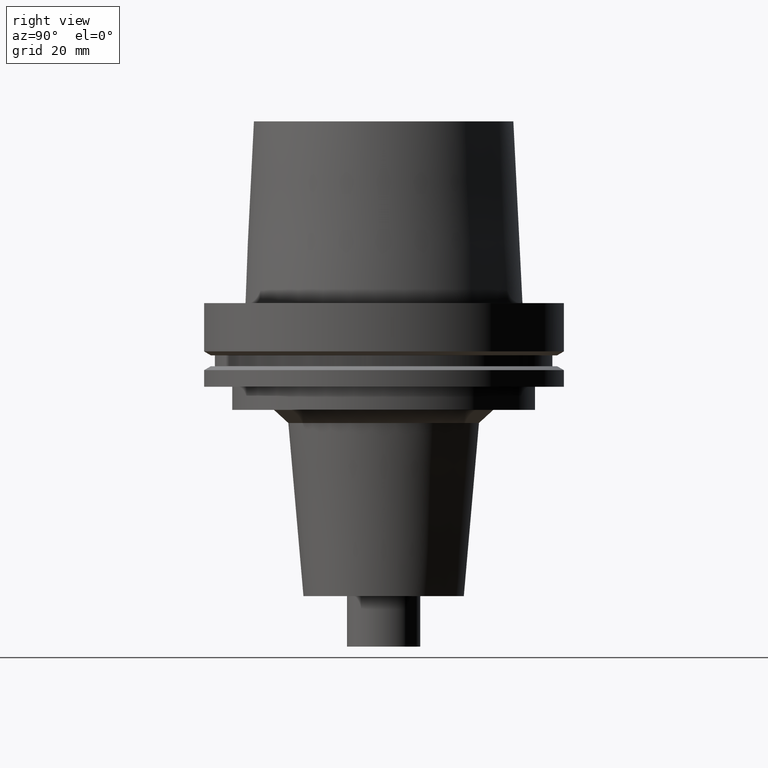
[diagram: clean part render]
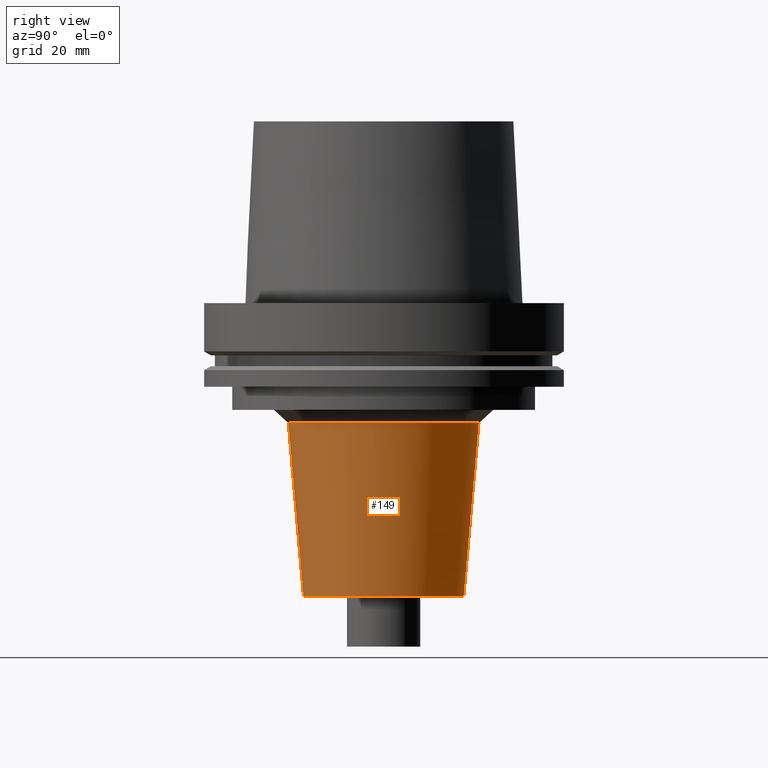
[diagram: same view with one face highlighted and labeled with its STEP entity id]
A machine part, right view. The second image highlights one B-rep face of the part: STEP entity #149.
In plain terms, the highlighted conical surface has half-angle 5 deg.
Its self-contained STEP definition (entity closure, byte-faithful):
#69=EDGE_CURVE('Unnamed[1]',#182,#182,#183,.T.);
#101=EDGE_CURVE('Unnamed[1]',#232,#232,#233,.T.);
#149=ADVANCED_FACE('Unnamed[1]',(#305,#306),#307,.T.);
#182=VERTEX_POINT('',#334);
#183=CIRCLE('',#335,33.0524500434029);
#232=VERTEX_POINT('',#398);
#233=CIRCLE('',#399,27.8000000000002);
#305=FACE_BOUND('',#488,.T.);
#306=FACE_BOUND('',#489,.T.);
#307=CONICAL_SURFACE('',#490,30.4262250217015,0.0872664625997151);
#334=CARTESIAN_POINT('',(2.54507452786363E-015,33.0524500434029,-41.5642212862616));
#335=AXIS2_PLACEMENT_3D('',#510,#511,#512);
#398=CARTESIAN_POINT('',(6.22120573966833E-015,27.8000000000002,-101.599999999996));
#399=AXIS2_PLACEMENT_3D('',#564,#565,#566);
#488=EDGE_LOOP('',(#645));
#489=EDGE_LOOP('',(#646));
#490=AXIS2_PLACEMENT_3D('',#647,#648,#649);
#510=CARTESIAN_POINT('',(2.54507452786363E-015,5.09014905572725E-015,-41.5642212862616));
#511=DIRECTION('',(6.12323399573677E-017,1.22464679914735E-016,-1.0));
#512=DIRECTION('',(-1.23259516440783E-032,1.0,1.22464679914735E-016));
#564=CARTESIAN_POINT('',(6.22120573966833E-015,1.24424114793367E-014,-101.599999999996));
#565=DIRECTION('',(6.12323399573677E-017,1.22464679914735E-016,-1.0));
#566=DIRECTION('',(-1.23259516440783E-032,1.0,1.22464679914735E-016));
#645=ORIENTED_EDGE('',*,*,#101,.F.);
#646=ORIENTED_EDGE('',*,*,#69,.T.);
#647=CARTESIAN_POINT('',(4.38314013376598E-015,8.76628026753196E-015,-71.582110643129));
#648=DIRECTION('',(-6.12323399573677E-017,-1.22464679914735E-016,1.0));
#649=DIRECTION('',(-1.23259516440783E-032,1.0,1.22464679914735E-016));